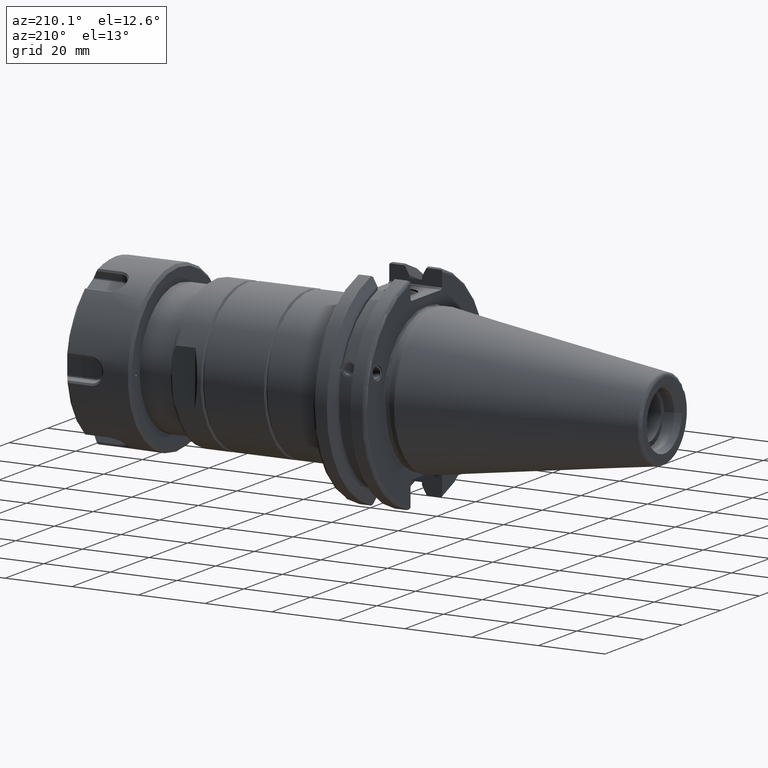
[diagram: clean part render]
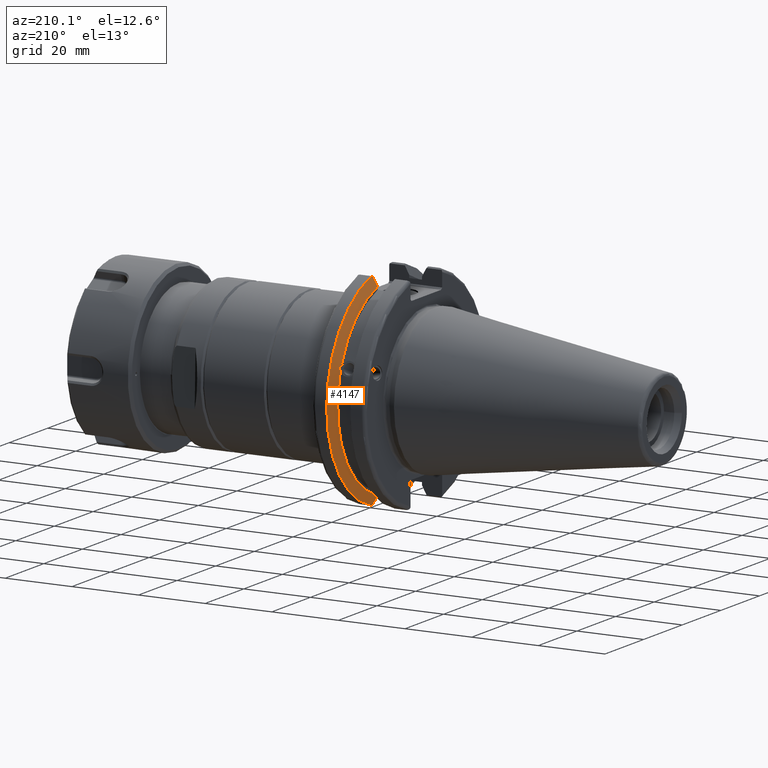
[diagram: same view with one face highlighted and labeled with its STEP entity id]
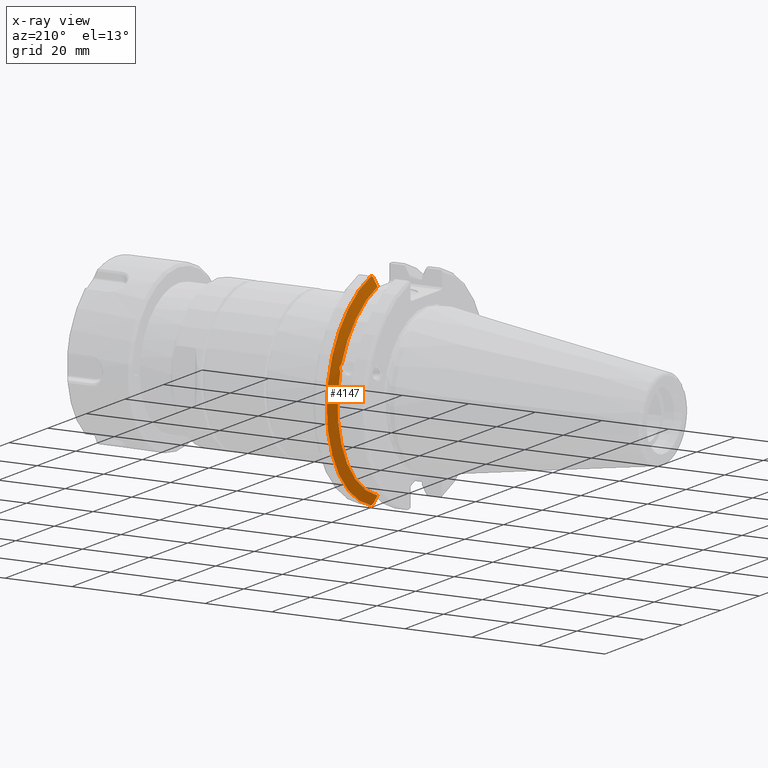
[diagram: x-ray of the same camera — body ghosted, the highlighted face saturated]
A machine part, auxiliary view. The second image highlights one B-rep face of the part: STEP entity #4147.
The next image is the same camera in x-ray: the body ghosted, the highlighted face saturated — about 0% of this face is hidden behind the body in this view.
In plain terms, the highlighted conical surface has half-angle 60 deg.
Its self-contained STEP definition (entity closure, byte-faithful):
#137=(
BOUNDED_CURVE()
B_SPLINE_CURVE(2,(#6672,#6673,#6674),.UNSPECIFIED.,.F.,.F.)
B_SPLINE_CURVE_WITH_KNOTS((3,3),(0.,0.276549142795285),.UNSPECIFIED.)
CURVE()
GEOMETRIC_REPRESENTATION_ITEM()
RATIONAL_B_SPLINE_CURVE((1.,1.00095203903482,1.00031614444868))
REPRESENTATION_ITEM('')
);
#138=(
BOUNDED_CURVE()
B_SPLINE_CURVE(2,(#6676,#6677,#6678),.UNSPECIFIED.,.F.,.F.)
B_SPLINE_CURVE_WITH_KNOTS((3,3),(0.,0.0639048713675832),.UNSPECIFIED.)
CURVE()
GEOMETRIC_REPRESENTATION_ITEM()
RATIONAL_B_SPLINE_CURVE((1.,1.0002844421829,1.00047644010585))
REPRESENTATION_ITEM('')
);
#139=(
BOUNDED_CURVE()
B_SPLINE_CURVE(2,(#6682,#6683,#6684),.UNSPECIFIED.,.F.,.F.)
B_SPLINE_CURVE_WITH_KNOTS((3,3),(0.329353533631253,0.393258405001026),
 .UNSPECIFIED.)
CURVE()
GEOMETRIC_REPRESENTATION_ITEM()
RATIONAL_B_SPLINE_CURVE((1.00047644010593,1.00028444218295,1.))
REPRESENTATION_ITEM('')
);
#140=(
BOUNDED_CURVE()
B_SPLINE_CURVE(2,(#6686,#6687,#6688),.UNSPECIFIED.,.F.,.F.)
B_SPLINE_CURVE_WITH_KNOTS((3,3),(0.0550586467398919,0.331607789535851),
 .UNSPECIFIED.)
CURVE()
GEOMETRIC_REPRESENTATION_ITEM()
RATIONAL_B_SPLINE_CURVE((1.00031614444973,1.00095203903796,1.))
REPRESENTATION_ITEM('')
);
#194=B_SPLINE_CURVE_WITH_KNOTS('',3,(#6597,#6598,#6599,#6600,#6601,#6602,
#6603,#6604),.UNSPECIFIED.,.F.,.F.,(4,2,2,4),(0.451995700189026,0.464547828547662,
0.504528771685167,0.544509714822672),.UNSPECIFIED.);
#198=B_SPLINE_CURVE_WITH_KNOTS('',3,(#6659,#6660,#6661,#6662,#6663,#6664,
#6665,#6666),.UNSPECIFIED.,.F.,.F.,(4,2,2,4),(0.544509714822672,0.584490657960178,
0.624471601097683,0.637023729456321),.UNSPECIFIED.);
#575=FACE_OUTER_BOUND('',#846,.T.);
#846=EDGE_LOOP('',(#3043,#3044,#3045,#3046,#3047,#3048,#3049,#3050,#3051));
#1609=CIRCLE('',#4553,28.9593772964944);
#1610=CIRCLE('',#4554,31.75);
#1611=CIRCLE('',#4555,28.9593772964944);
#1876=VERTEX_POINT('',#6594);
#1877=VERTEX_POINT('',#6596);
#1884=VERTEX_POINT('',#6657);
#1885=VERTEX_POINT('',#6669);
#1886=VERTEX_POINT('',#6671);
#1887=VERTEX_POINT('',#6675);
#1888=VERTEX_POINT('',#6679);
#1889=VERTEX_POINT('',#6681);
#1890=VERTEX_POINT('',#6685);
#2316=EDGE_CURVE('',#1877,#1876,#194,.T.);
#2324=EDGE_CURVE('',#1876,#1884,#198,.T.);
#2325=EDGE_CURVE('',#1884,#1885,#1609,.T.);
#2326=EDGE_CURVE('',#1885,#1886,#137,.T.);
#2327=EDGE_CURVE('',#1887,#1886,#138,.T.);
#2328=EDGE_CURVE('',#1888,#1887,#1610,.T.);
#2329=EDGE_CURVE('',#1889,#1888,#139,.T.);
#2330=EDGE_CURVE('',#1889,#1890,#140,.T.);
#2331=EDGE_CURVE('',#1890,#1877,#1611,.T.);
#3043=ORIENTED_EDGE('',*,*,#2316,.T.);
#3044=ORIENTED_EDGE('',*,*,#2324,.T.);
#3045=ORIENTED_EDGE('',*,*,#2325,.T.);
#3046=ORIENTED_EDGE('',*,*,#2326,.T.);
#3047=ORIENTED_EDGE('',*,*,#2327,.F.);
#3048=ORIENTED_EDGE('',*,*,#2328,.F.);
#3049=ORIENTED_EDGE('',*,*,#2329,.F.);
#3050=ORIENTED_EDGE('',*,*,#2330,.T.);
#3051=ORIENTED_EDGE('',*,*,#2331,.T.);
#4060=CONICAL_SURFACE('',#4552,30.3546886482472,1.0471975511966);
#4147=ADVANCED_FACE('',(#575),#4060,.T.);
#4552=AXIS2_PLACEMENT_3D('',#6668,#5222,#5223);
#4553=AXIS2_PLACEMENT_3D('',#6670,#5224,#5225);
#4554=AXIS2_PLACEMENT_3D('',#6680,#5226,#5227);
#4555=AXIS2_PLACEMENT_3D('',#6689,#5228,#5229);
#5222=DIRECTION('center_axis',(1.,0.,0.));
#5223=DIRECTION('ref_axis',(0.,1.,0.));
#5224=DIRECTION('center_axis',(1.,0.,0.));
#5225=DIRECTION('ref_axis',(0.,0.,-1.));
#5226=DIRECTION('center_axis',(1.,0.,0.));
#5227=DIRECTION('ref_axis',(0.,0.,-1.));
#5228=DIRECTION('center_axis',(1.,0.,0.));
#5229=DIRECTION('ref_axis',(0.,0.,-1.));
#6594=CARTESIAN_POINT('',(13.2341,27.51401829017,10.0142836826778));
#6596=CARTESIAN_POINT('',(13.0491,27.4956274489925,9.09043478536247));
#6597=CARTESIAN_POINT('Ctrl Pts',(13.0491,27.4956274489925,9.09043478536247));
#6598=CARTESIAN_POINT('Ctrl Pts',(13.0632204071996,27.5087667900418,9.12860597076219));
#6599=CARTESIAN_POINT('Ctrl Pts',(13.0766929817857,27.5206055003513,9.16696618806878));
#6600=CARTESIAN_POINT('Ctrl Pts',(13.130081441159,27.5642934663232,9.32791534028656));
#6601=CARTESIAN_POINT('Ctrl Pts',(13.1682197084175,27.5867382255984,9.46717946402648));
#6602=CARTESIAN_POINT('Ctrl Pts',(13.2204106446058,27.5847569104122,9.74771639360672));
#6603=CARTESIAN_POINT('Ctrl Pts',(13.2341,27.559599249844,9.8890510252165));
#6604=CARTESIAN_POINT('Ctrl Pts',(13.2341,27.51401829017,10.0142836826778));
#6657=CARTESIAN_POINT('',(13.0491,26.9060914640648,10.7101715919071));
#6659=CARTESIAN_POINT('Ctrl Pts',(13.2341,27.51401829017,10.0142836826778));
#6660=CARTESIAN_POINT('Ctrl Pts',(13.2341,27.4684373304961,10.139516340139));
#6661=CARTESIAN_POINT('Ctrl Pts',(13.2204106446058,27.3968610665578,10.2639559818059));
#6662=CARTESIAN_POINT('Ctrl Pts',(13.1682197084175,27.2180531796526,10.4801333026531));
#6663=CARTESIAN_POINT('Ctrl Pts',(13.130081441159,27.1113422433189,10.5723885976054));
#6664=CARTESIAN_POINT('Ctrl Pts',(13.0766929817857,26.9744191989197,10.6676007180674));
#6665=CARTESIAN_POINT('Ctrl Pts',(13.0632204071996,26.9406927482839,10.6893765730703));
#6666=CARTESIAN_POINT('Ctrl Pts',(13.0491,26.9060914640648,10.7101715919071));
#6668=CARTESIAN_POINT('Origin',(13.8546833845378,0.,0.));
#6669=CARTESIAN_POINT('',(13.0491,8.19,27.7771386827498));
#6670=CARTESIAN_POINT('Origin',(13.0491,0.,0.));
#6671=CARTESIAN_POINT('',(14.3815146964874,8.19,30.1755016258903));
#6672=CARTESIAN_POINT('Ctrl Pts',(13.0491,8.19,27.7771386827498));
#6673=CARTESIAN_POINT('Ctrl Pts',(13.6877364384881,8.19,28.930368953992));
#6674=CARTESIAN_POINT('Ctrl Pts',(14.3815146964874,8.19,30.1755016258903));
#6675=CARTESIAN_POINT('',(14.6602667690756,8.67204822802685,30.5427254764662));
#6676=CARTESIAN_POINT('Ctrl Pts',(14.6602667690756,8.67204822802687,30.5427254764662));
#6677=CARTESIAN_POINT('Ctrl Pts',(14.5192085187837,8.42917748262644,30.357706789263));
#6678=CARTESIAN_POINT('Ctrl Pts',(14.3815146964874,8.19,30.1755016258903));
#6679=CARTESIAN_POINT('',(14.6602667690756,8.67204822802685,-30.5427254764662));
#6680=CARTESIAN_POINT('Origin',(14.6602667690756,0.,0.));
#6681=CARTESIAN_POINT('',(14.3815146964874,8.18999999999999,-30.1755016258903));
#6682=CARTESIAN_POINT('Ctrl Pts',(14.3815146964874,8.18999999999999,-30.1755016258903));
#6683=CARTESIAN_POINT('Ctrl Pts',(14.5192085187884,8.4291774826346,-30.3577067892692));
#6684=CARTESIAN_POINT('Ctrl Pts',(14.6602667690756,8.67204822802686,-30.5427254764662));
#6685=CARTESIAN_POINT('',(13.0491,8.19,-27.7771386827498));
#6686=CARTESIAN_POINT('Ctrl Pts',(14.3815146964874,8.18999999999999,-30.1755016258903));
#6687=CARTESIAN_POINT('Ctrl Pts',(13.6877364384816,8.18999999999999,-28.9303689539805));
#6688=CARTESIAN_POINT('Ctrl Pts',(13.0491,8.19,-27.7771386827498));
#6689=CARTESIAN_POINT('Origin',(13.0491,0.,0.));